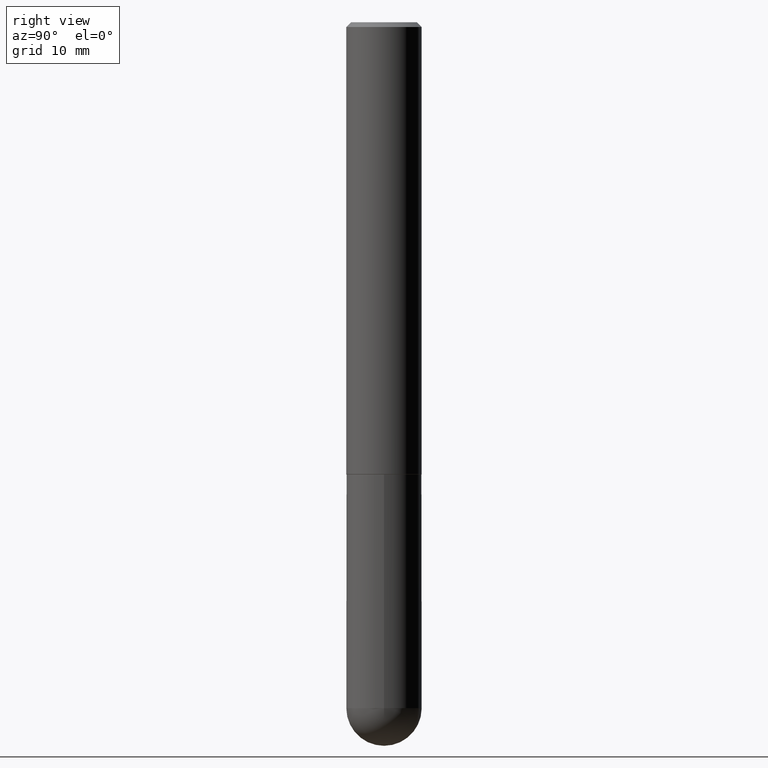
[diagram: clean part render]
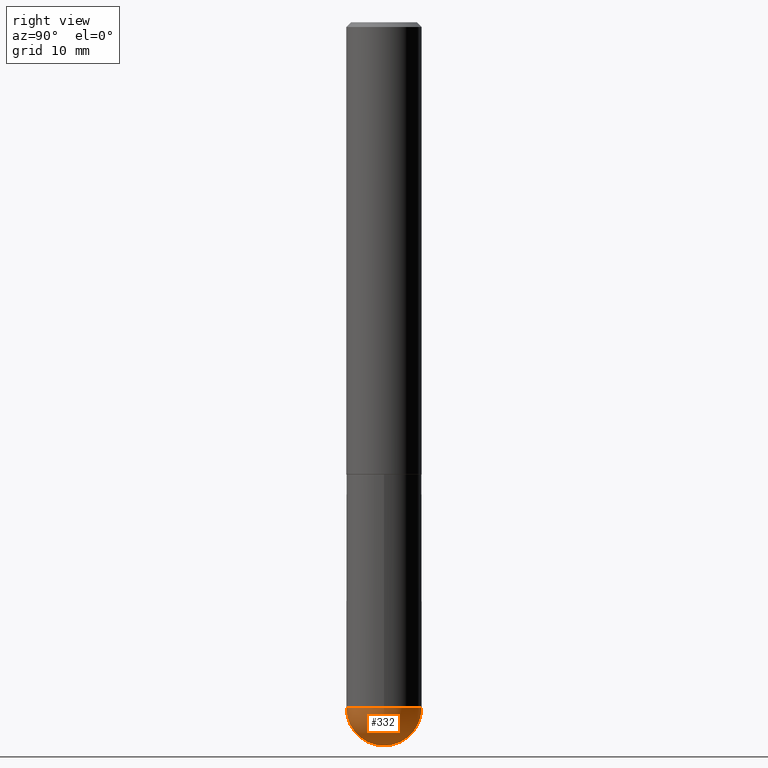
[diagram: same view with one face highlighted and labeled with its STEP entity id]
A machine part, right view. The second image highlights one B-rep face of the part: STEP entity #332.
In plain terms, the highlighted spherical surface has radius 3.9688 mm.
Its self-contained STEP definition (entity closure, byte-faithful):
#13 = ORIENTED_EDGE ( 'NONE', *, *, #302, .F. ) ;
#17 = CIRCLE ( 'NONE', #202, 0.1562500000000000000 ) ;
#23 = CARTESIAN_POINT ( 'NONE',  ( 0.1562500000000000000, -9.328801702221526319E-15, -2.843750000000000000 ) ) ;
#45 = AXIS2_PLACEMENT_3D ( 'NONE', #371, #211, #342 ) ;
#58 = DIRECTION ( 'NONE',  ( 6.982962677686265922E-15, 1.000000000000000000, -3.496765431890248242E-15 ) ) ;
#65 = CIRCLE ( 'NONE', #183, 0.1562500000000000000 ) ;
#81 = ORIENTED_EDGE ( 'NONE', *, *, #295, .T. ) ;
#83 = DIRECTION ( 'NONE',  ( 1.000000000000000000, -6.982962677686265922E-15, 4.883557194083112340E-29 ) ) ;
#86 = DIRECTION ( 'NONE',  ( 1.000000000000000000, -6.982962677686262766E-15, 0.000000000000000000 ) ) ;
#93 = DIRECTION ( 'NONE',  ( -2.445468806185136597E-29, 3.491481338843145583E-15, 1.000000000000000000 ) ) ;
#113 = VERTEX_POINT ( 'NONE', #188 ) ;
#149 = FACE_OUTER_BOUND ( 'NONE', #230, .T. ) ;
#178 = CARTESIAN_POINT ( 'NONE',  ( -1.110223024625089684E-15, -0.1562500000000103806, -2.843749999999999556 ) ) ;
#183 = AXIS2_PLACEMENT_3D ( 'NONE', #204, #311, #336 ) ;
#188 = CARTESIAN_POINT ( 'NONE',  ( 1.091087918388548199E-15, 0.1562499999999900357, -2.843750000000000444 ) ) ;
#202 = AXIS2_PLACEMENT_3D ( 'NONE', #212, #93, #86 ) ;
#204 = CARTESIAN_POINT ( 'NONE',  ( 6.954301917588981076E-29, -9.928900057335195583E-15, -2.843750000000000000 ) ) ;
#207 = EDGE_CURVE ( 'NONE', #396, #392, #347, .T. ) ;
#209 = DIRECTION ( 'NONE',  ( -1.000000000000000000, 6.982962677686265922E-15, -4.883557194083112340E-29 ) ) ;
#211 = DIRECTION ( 'NONE',  ( -1.000000000000000000, 7.105427357601001070E-15, -4.926315508542082329E-29 ) ) ;
#212 = CARTESIAN_POINT ( 'NONE',  ( 6.954301917588981076E-29, -9.928900057335195583E-15, -2.843750000000000000 ) ) ;
#230 = EDGE_LOOP ( 'NONE', ( #352, #81, #379, #13 ) ) ;
#245 = SPHERICAL_SURFACE ( 'NONE', #278, 0.1562500000000003886 ) ;
#269 = EDGE_CURVE ( 'NONE', #328, #113, #17, .T. ) ;
#278 = AXIS2_PLACEMENT_3D ( 'NONE', #369, #209, #58 ) ;
#295 = EDGE_CURVE ( 'NONE', #396, #113, #318, .T. ) ;
#302 = EDGE_CURVE ( 'NONE', #392, #328, #65, .T. ) ;
#311 = DIRECTION ( 'NONE',  ( -2.445468806185136597E-29, 3.491481338843145583E-15, 1.000000000000000000 ) ) ;
#318 = CIRCLE ( 'NONE', #360, 0.1562500000000003886 ) ;
#328 = VERTEX_POINT ( 'NONE', #23 ) ;
#332 = ADVANCED_FACE ( 'NONE', ( #149 ), #245, .T. ) ;
#336 = DIRECTION ( 'NONE',  ( 1.000000000000000000, -6.982962677686262766E-15, 0.000000000000000000 ) ) ;
#339 = CARTESIAN_POINT ( 'NONE',  ( 6.623182139675095950E-29, -1.040308242547524746E-14, -2.843750000000000000 ) ) ;
#342 = DIRECTION ( 'NONE',  ( -7.105427357601000281E-15, -1.000000000000000000, 0.000000000000000000 ) ) ;
#344 = CARTESIAN_POINT ( 'NONE',  ( 7.011967627275737762E-29, -1.093905883155115073E-14, -3.000000000000000444 ) ) ;
#347 = CIRCLE ( 'NONE', #45, 0.1562500000000003886 ) ;
#352 = ORIENTED_EDGE ( 'NONE', *, *, #207, .F. ) ;
#360 = AXIS2_PLACEMENT_3D ( 'NONE', #339, #83, #365 ) ;
#365 = DIRECTION ( 'NONE',  ( 6.982962677686265922E-15, 1.000000000000000000, 0.000000000000000000 ) ) ;
#369 = CARTESIAN_POINT ( 'NONE',  ( 6.623182139675095950E-29, -1.040308242547524746E-14, -2.843750000000000000 ) ) ;
#371 = CARTESIAN_POINT ( 'NONE',  ( 6.623182139675095950E-29, -1.040308242547524746E-14, -2.843750000000000000 ) ) ;
#379 = ORIENTED_EDGE ( 'NONE', *, *, #269, .F. ) ;
#392 = VERTEX_POINT ( 'NONE', #178 ) ;
#396 = VERTEX_POINT ( 'NONE', #344 ) ;